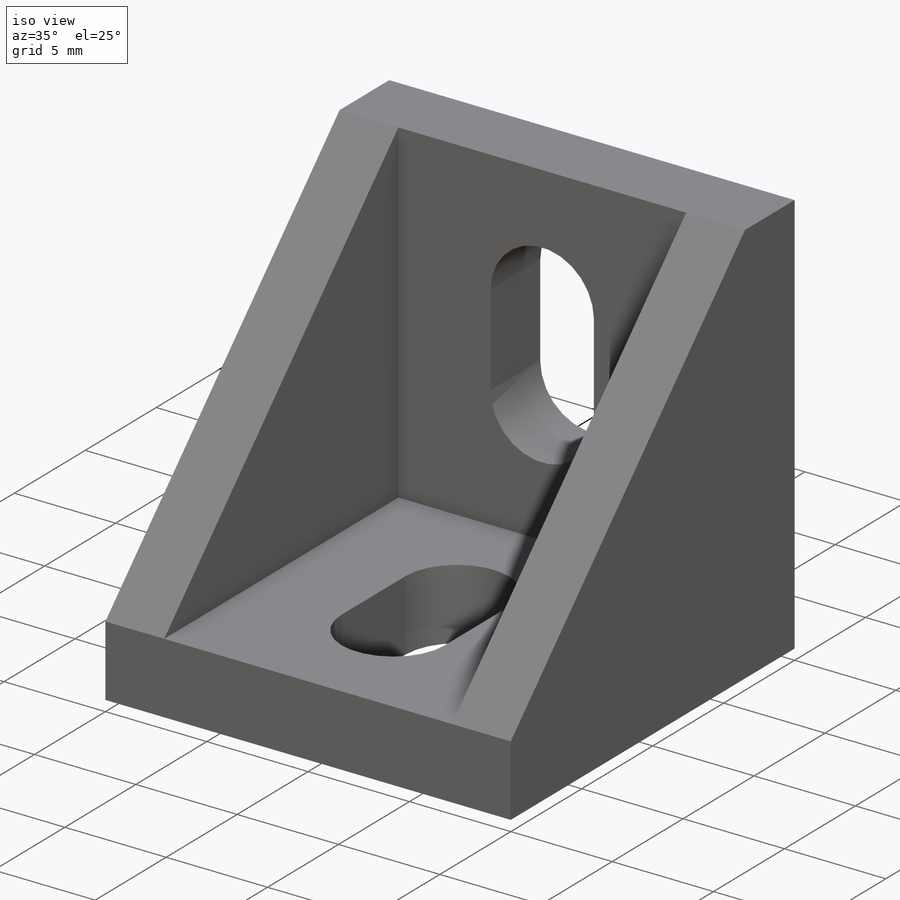
[diagram: iso view]
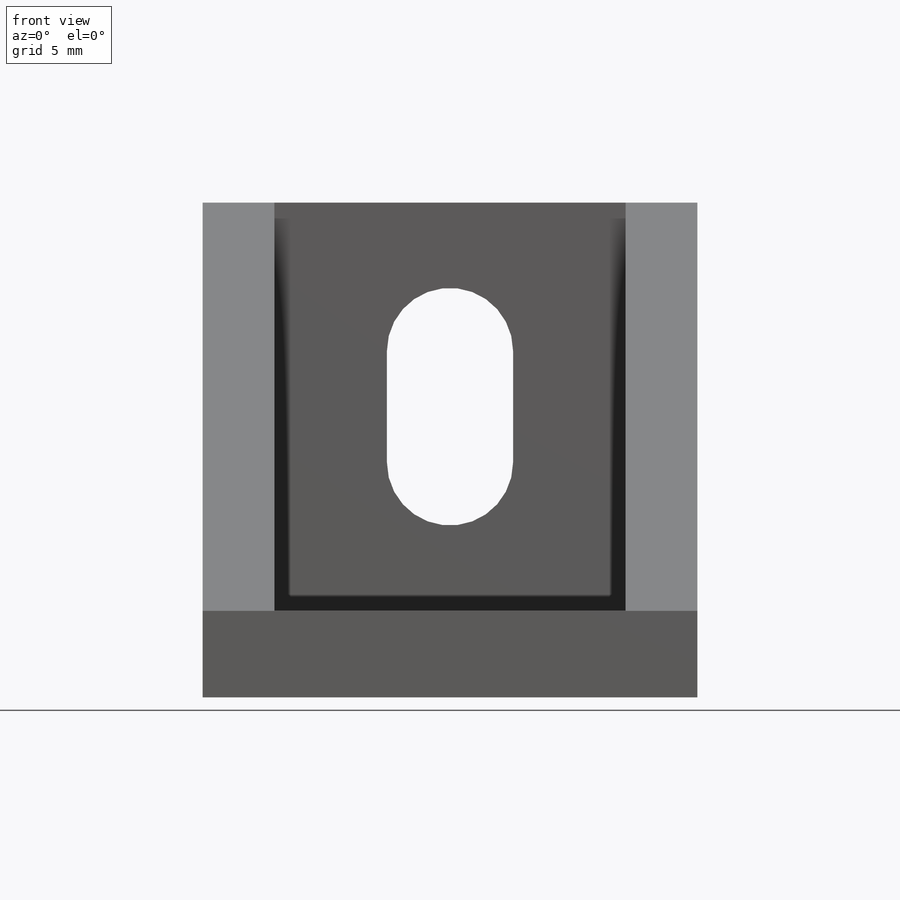
[diagram: front view]
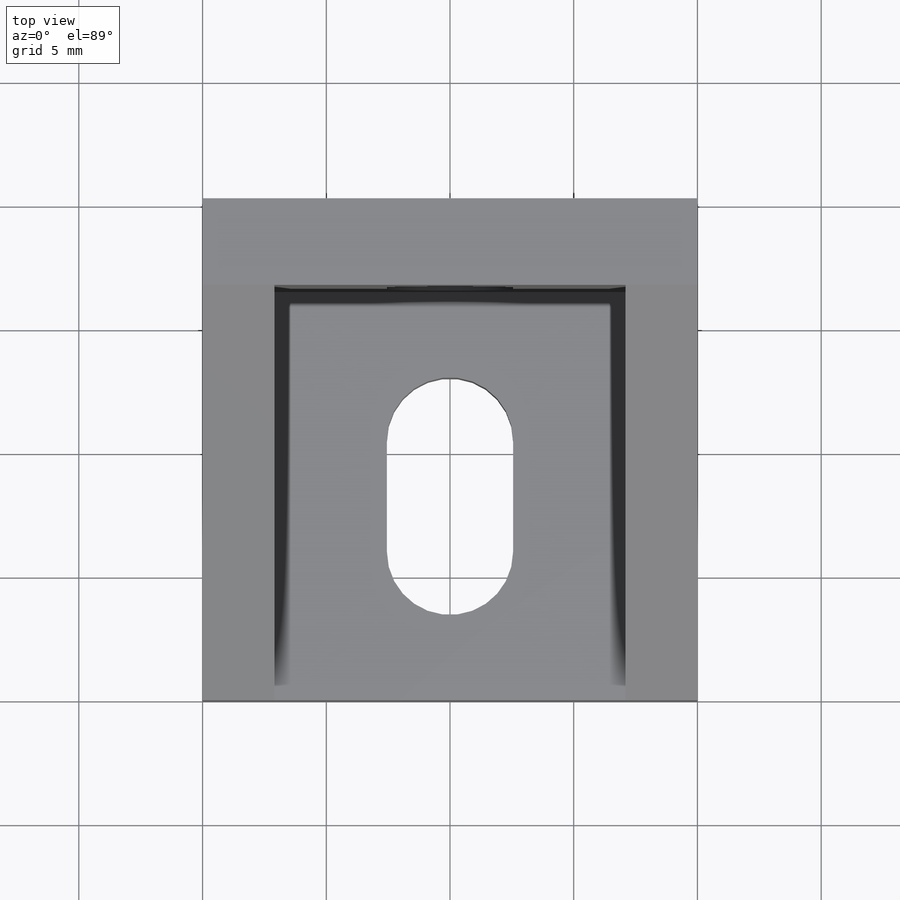
[diagram: top view]
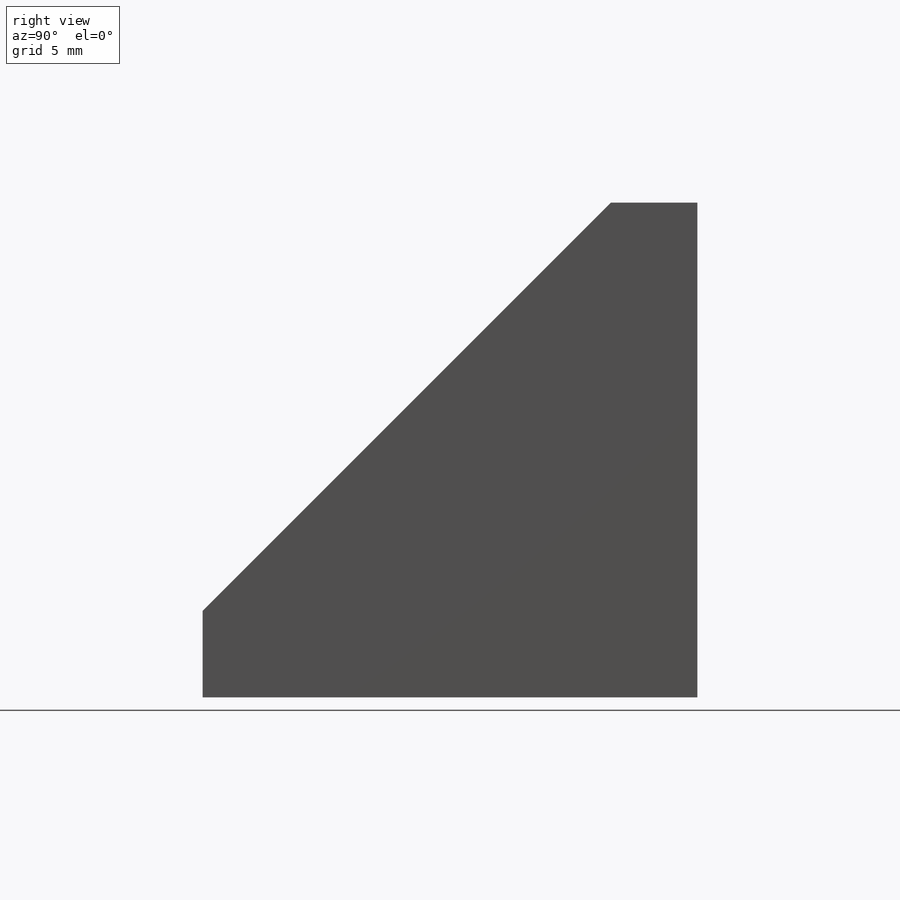
[diagram: right view]
SOLIDWORKS PART (.sldprt)
format: sldprt  version: not decoded by parser v0  size: 155,648 bytes
history: native  units: mm
features: sketch x6, extrude x4, cut_extrude x2, material x1 (+15 scaffold rows collapsed)
feature tree (28):
  scaffold x15  (default folders/planes/origin — collapsed)
  material  "Material <not specified>"
  sketch  "Sketch1"  dims[D1=20.0mm D2=20.0mm]
  extrude  "Extrude1"  Depth=3.5mm
  sketch  "Sketch2"  dims[D1=3.5mm]
  extrude  "Extrude2"  Depth=16.5mm
  sketch  "Sketch5"
  extrude  "Extrude3"  Depth=2.9mm
  sketch  "Sketch6"
  extrude  "Extrude4"  Depth=2.9mm
  sketch  "Sketch7"  dims[D1=2.55mm D2=6.0mm D3=6.0mm]
  cut_extrude  "Cut-Extrude1"  [1 undecoded]
  sketch  "Sketch8"  dims[c1.D1=2.55mm c1.D2=6.0mm c1.D3=6.0mm c2.D2=6.0mm]
  cut_extrude  "Cut-Extrude2"  [1 undecoded]
decode coverage: 8 of 12 modeling features carry decoded parameters
note: 2 parameter values undecoded
note: suppression state not decoded; provenance and decode notes live in map.json
